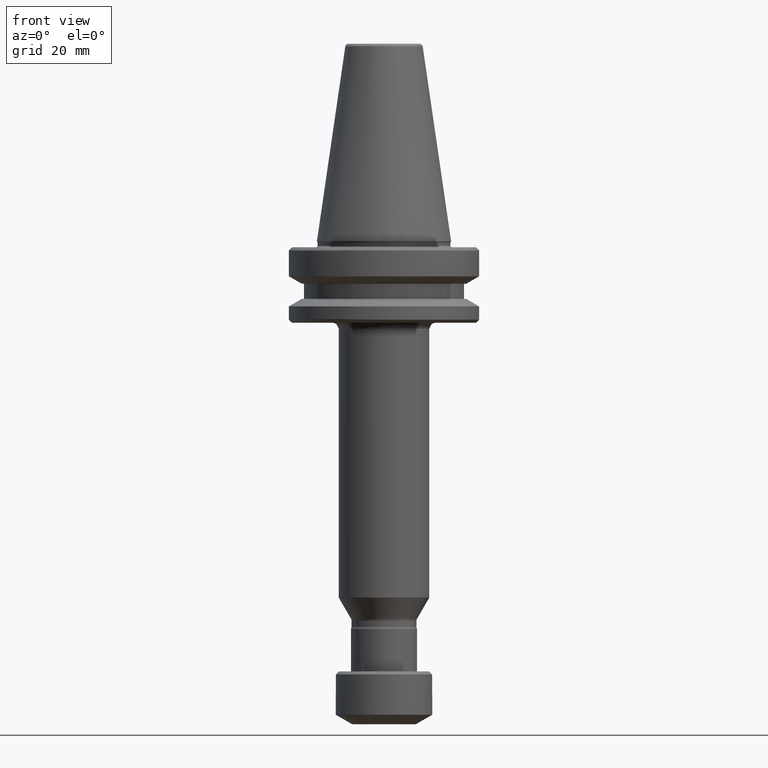
[diagram: clean part render]
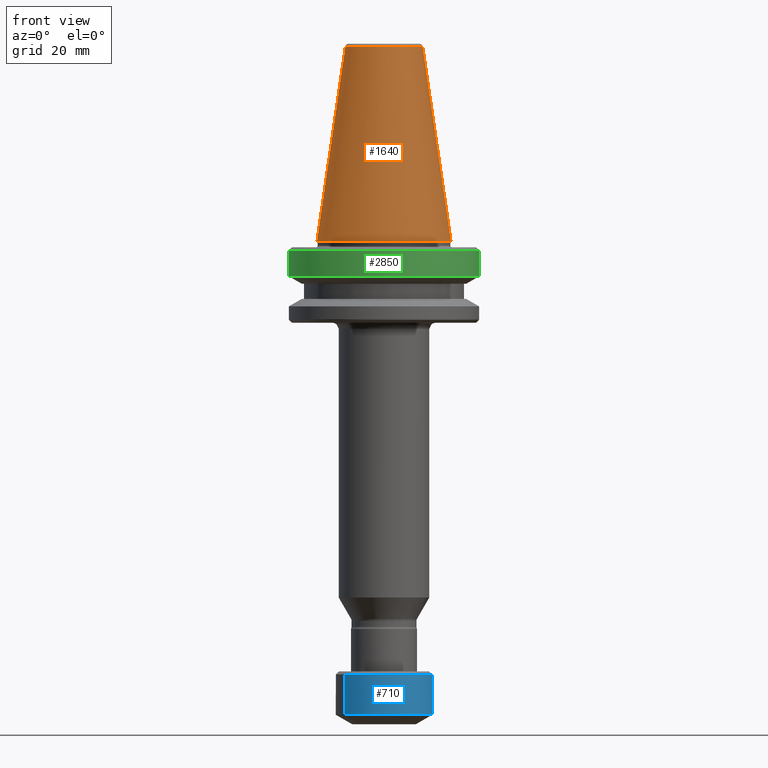
[diagram: same view with three faces highlighted in distinct colors, each labeled with its STEP entity id]
A machine part, front view with three faces highlighted in distinct colors.
Their STEP definitions:

[orange] entity #1640 — the highlighted conical surface has half-angle 8.297 deg.
#42 = VECTOR ( 'NONE', #2579, 1000.000000000000000 ) ;
#47 = LINE ( 'NONE', #1054, #42 ) ;
#488 = EDGE_CURVE ( 'NONE', #2176, #2423, #1147, .T. ) ;
#641 = DIRECTION ( 'NONE',  ( -0.0000000000000000000, -0.0000000000000000000, 1.000000000000000000 ) ) ;
#737 = CONICAL_SURFACE ( 'NONE', #3023, 12.81219950700000800, 0.1448138465489547400 ) ;
#750 = FACE_OUTER_BOUND ( 'NONE', #1932, .T. ) ;
#898 = VECTOR ( 'NONE', #2700, 1000.000000000000000 ) ;
#901 = LINE ( 'NONE', #3517, #898 ) ;
#916 = CARTESIAN_POINT ( 'NONE',  ( 119.3965867387900100, 130.0629772186810600, 223.7735449650539900 ) ) ;
#930 = CARTESIAN_POINT ( 'NONE',  ( 97.17158673879001200, 130.0629772186810600, 159.2292367380540000 ) ) ;
#965 = CIRCLE ( 'NONE', #2912, 22.22499999999999400 ) ;
#1054 = CARTESIAN_POINT ( 'NONE',  ( 106.5843872317899900, 130.0629772186810600, 223.7735449650539900 ) ) ;
#1081 = EDGE_CURVE ( 'NONE', #1292, #1549, #965, .T. ) ;
#1147 = CIRCLE ( 'NONE', #2162, 12.81219950700000800 ) ;
#1240 = EDGE_CURVE ( 'NONE', #2423, #1549, #901, .T. ) ;
#1263 = CARTESIAN_POINT ( 'NONE',  ( 132.2087862457899800, 130.0629772155276400, 223.7735449650539900 ) ) ;
#1274 = ORIENTED_EDGE ( 'NONE', *, *, #3599, .T. ) ;
#1292 = VERTEX_POINT ( 'NONE', #930 ) ;
#1430 = DIRECTION ( 'NONE',  ( 0.0000000000000000000, 0.0000000000000000000, -1.000000000000000000 ) ) ;
#1455 = CARTESIAN_POINT ( 'NONE',  ( 106.5843872317899900, 130.0629772182208500, 223.7735449650539900 ) ) ;
#1470 = CARTESIAN_POINT ( 'NONE',  ( 119.3965867387900100, 130.0629772186810600, 159.2292367380540000 ) ) ;
#1549 = VERTEX_POINT ( 'NONE', #3099 ) ;
#1640 = ADVANCED_FACE ( 'NONE', ( #750 ), #737, .T. ) ;
#1745 = DIRECTION ( 'NONE',  ( -1.000000000000000000, 0.0000000000000000000, 0.0000000000000000000 ) ) ;
#1798 = DIRECTION ( 'NONE',  ( 1.000000000000000000, 0.0000000000000000000, 0.0000000000000000000 ) ) ;
#1833 = ORIENTED_EDGE ( 'NONE', *, *, #488, .F. ) ;
#1932 = EDGE_LOOP ( 'NONE', ( #3718, #1833, #1274, #2790 ) ) ;
#2162 = AXIS2_PLACEMENT_3D ( 'NONE', #916, #641, #2741 ) ;
#2176 = VERTEX_POINT ( 'NONE', #1455 ) ;
#2423 = VERTEX_POINT ( 'NONE', #1263 ) ;
#2579 = DIRECTION ( 'NONE',  ( -0.1443082272688266400, 0.0000000000000000000, -0.9895327864919528600 ) ) ;
#2700 = DIRECTION ( 'NONE',  ( 0.1443082272688266400, 1.767266086153973400E-017, -0.9895327864919528600 ) ) ;
#2741 = DIRECTION ( 'NONE',  ( -1.000000000000000000, 0.0000000000000000000, 2.166339635943424100E-015 ) ) ;
#2790 = ORIENTED_EDGE ( 'NONE', *, *, #1081, .T. ) ;
#2905 = CARTESIAN_POINT ( 'NONE',  ( 119.3965867387900100, 130.0629772186810600, 223.7735449650539900 ) ) ;
#2912 = AXIS2_PLACEMENT_3D ( 'NONE', #1470, #3481, #1798 ) ;
#3023 = AXIS2_PLACEMENT_3D ( 'NONE', #2905, #1430, #1745 ) ;
#3099 = CARTESIAN_POINT ( 'NONE',  ( 141.6215867387900000, 130.0629772186810600, 159.2292367380540000 ) ) ;
#3481 = DIRECTION ( 'NONE',  ( 0.0000000000000000000, 0.0000000000000000000, 1.000000000000000000 ) ) ;
#3517 = CARTESIAN_POINT ( 'NONE',  ( 132.2087862457899800, 130.0629772186810600, 223.7735449650539900 ) ) ;
#3599 = EDGE_CURVE ( 'NONE', #2176, #1292, #47, .T. ) ;
#3718 = ORIENTED_EDGE ( 'NONE', *, *, #1240, .F. ) ;

[blue] entity #710 — the highlighted cylindrical surface (partial cylindrical patch) has radius 16 mm, axis along (0, 0, 1).
#116 = LINE ( 'NONE', #1612, #127 ) ;
#127 = VECTOR ( 'NONE', #3604, 1000.000000000000000 ) ;
#184 = CARTESIAN_POINT ( 'NONE',  ( 106.4691752599609600, 120.6352504270817300, 2.371451957568493400 ) ) ;
#206 = CARTESIAN_POINT ( 'NONE',  ( 119.3965867387900100, 130.0629772186810600, 2.404663219054282000 ) ) ;
#246 = CARTESIAN_POINT ( 'NONE',  ( 106.4691752599609600, 120.6352504270817300, 2.404663219054282500 ) ) ;
#291 = CIRCLE ( 'NONE', #3201, 16.00000000000000400 ) ;
#323 = CYLINDRICAL_SURFACE ( 'NONE', #360, 16.00000000000000400 ) ;
#360 = AXIS2_PLACEMENT_3D ( 'NONE', #206, #516, #3170 ) ;
#409 = CIRCLE ( 'NONE', #3483, 16.00000000000001400 ) ;
#464 = EDGE_CURVE ( 'NONE', #718, #2798, #1161, .T. ) ;
#516 = DIRECTION ( 'NONE',  ( 2.189988689056325900E-017, 1.597119042039337700E-017, 1.000000000000000000 ) ) ;
#603 = CARTESIAN_POINT ( 'NONE',  ( 119.3965867387900100, 130.0629772186810600, 2.371451957568493400 ) ) ;
#640 = CARTESIAN_POINT ( 'NONE',  ( 106.4691752599609600, 120.6352504270817300, 15.72923673805428100 ) ) ;
#710 = ADVANCED_FACE ( 'NONE', ( #1104 ), #323, .T. ) ;
#718 = VERTEX_POINT ( 'NONE', #184 ) ;
#876 = CARTESIAN_POINT ( 'NONE',  ( 119.3965867387900100, 130.0629772186810600, 15.72923673805428100 ) ) ;
#903 = DIRECTION ( 'NONE',  ( 1.000000000000000000, 0.0000000000000000000, 0.0000000000000000000 ) ) ;
#987 = EDGE_CURVE ( 'NONE', #1561, #3266, #991, .T. ) ;
#991 = CIRCLE ( 'NONE', #2923, 16.00000000000001400 ) ;
#994 = ORIENTED_EDGE ( 'NONE', *, *, #464, .F. ) ;
#1104 = FACE_OUTER_BOUND ( 'NONE', #3584, .T. ) ;
#1161 = LINE ( 'NONE', #246, #1176 ) ;
#1176 = VECTOR ( 'NONE', #2384, 1000.000000000000000 ) ;
#1181 = DIRECTION ( 'NONE',  ( -0.5892329244749569000, 0.8079632174268143200, 0.0000000000000000000 ) ) ;
#1232 = DIRECTION ( 'NONE',  ( -0.0000000000000000000, -0.0000000000000000000, 1.000000000000000000 ) ) ;
#1284 = ORIENTED_EDGE ( 'NONE', *, *, #2879, .F. ) ;
#1561 = VERTEX_POINT ( 'NONE', #3157 ) ;
#1612 = CARTESIAN_POINT ( 'NONE',  ( 132.3239982176190200, 139.4907040102803500, 2.404663219054281600 ) ) ;
#2006 = ORIENTED_EDGE ( 'NONE', *, *, #987, .T. ) ;
#2330 = ORIENTED_EDGE ( 'NONE', *, *, #2658, .T. ) ;
#2360 = VERTEX_POINT ( 'NONE', #3306 ) ;
#2384 = DIRECTION ( 'NONE',  ( 2.189988689056325900E-017, 1.597119042039337700E-017, 1.000000000000000000 ) ) ;
#2658 = EDGE_CURVE ( 'NONE', #718, #1561, #409, .T. ) ;
#2705 = DIRECTION ( 'NONE',  ( -0.0000000000000000000, -0.0000000000000000000, 1.000000000000000000 ) ) ;
#2798 = VERTEX_POINT ( 'NONE', #640 ) ;
#2879 = EDGE_CURVE ( 'NONE', #2798, #2360, #291, .T. ) ;
#2923 = AXIS2_PLACEMENT_3D ( 'NONE', #3009, #1232, #3280 ) ;
#2958 = CARTESIAN_POINT ( 'NONE',  ( 132.3239982176190200, 139.4907040102803500, 2.371451957568493400 ) ) ;
#2961 = DIRECTION ( 'NONE',  ( 0.0000000000000000000, 0.0000000000000000000, 1.000000000000000000 ) ) ;
#3009 = CARTESIAN_POINT ( 'NONE',  ( 119.3965867387900100, 130.0629772186810600, 2.371451957568493400 ) ) ;
#3157 = CARTESIAN_POINT ( 'NONE',  ( 135.3965867387900100, 130.0629772186810600, 2.371451957568493400 ) ) ;
#3170 = DIRECTION ( 'NONE',  ( -0.8079632174268143200, -0.5892329244749569000, 2.710505431213760500E-017 ) ) ;
#3201 = AXIS2_PLACEMENT_3D ( 'NONE', #876, #2961, #1181 ) ;
#3266 = VERTEX_POINT ( 'NONE', #2958 ) ;
#3280 = DIRECTION ( 'NONE',  ( 1.000000000000000000, 0.0000000000000000000, 0.0000000000000000000 ) ) ;
#3306 = CARTESIAN_POINT ( 'NONE',  ( 132.3239982176190200, 139.4907040102803500, 15.72923673805428100 ) ) ;
#3354 = EDGE_CURVE ( 'NONE', #3266, #2360, #116, .T. ) ;
#3442 = ORIENTED_EDGE ( 'NONE', *, *, #3354, .T. ) ;
#3483 = AXIS2_PLACEMENT_3D ( 'NONE', #603, #2705, #903 ) ;
#3584 = EDGE_LOOP ( 'NONE', ( #2330, #2006, #3442, #1284, #994 ) ) ;
#3604 = DIRECTION ( 'NONE',  ( 2.189988689056325900E-017, 1.597119042039337700E-017, 1.000000000000000000 ) ) ;

[green] entity #2850 — the highlighted cylindrical surface (partial cylindrical patch) has radius 31.5 mm, axis along (0, 0, 1).
#59 = CIRCLE ( 'NONE', #3136, 31.50000000000000000 ) ;
#178 = CARTESIAN_POINT ( 'NONE',  ( 119.3965867387900100, 130.0629772186810600, 156.0635513130540100 ) ) ;
#216 = CARTESIAN_POINT ( 'NONE',  ( 87.89658673826343700, 130.0629772186810600, 147.6016487017199400 ) ) ;
#263 = CIRCLE ( 'NONE', #2613, 31.50000000027558400 ) ;
#314 = CYLINDRICAL_SURFACE ( 'NONE', #3158, 31.50000000000000000 ) ;
#318 = FACE_OUTER_BOUND ( 'NONE', #1328, .T. ) ;
#548 = CARTESIAN_POINT ( 'NONE',  ( 150.8965867393165800, 130.0629772186810600, 147.6016487017199400 ) ) ;
#582 = CIRCLE ( 'NONE', #3744, 31.50000000052655100 ) ;
#664 = CIRCLE ( 'NONE', #3175, 31.50000000000000000 ) ;
#698 = EDGE_CURVE ( 'NONE', #2213, #2883, #1138, .T. ) ;
#842 = DIRECTION ( 'NONE',  ( -0.0000000000000000000, -0.0000000000000000000, 1.000000000000000000 ) ) ;
#889 = VECTOR ( 'NONE', #2717, 1000.000000000000000 ) ;
#974 = LINE ( 'NONE', #3525, #889 ) ;
#1116 = VECTOR ( 'NONE', #1812, 1000.000000000000000 ) ;
#1138 = LINE ( 'NONE', #2898, #1116 ) ;
#1282 = EDGE_CURVE ( 'NONE', #1671, #2145, #974, .T. ) ;
#1328 = EDGE_LOOP ( 'NONE', ( #2413, #1810, #1660, #3105, #1969, #1386 ) ) ;
#1386 = ORIENTED_EDGE ( 'NONE', *, *, #1914, .F. ) ;
#1420 = VERTEX_POINT ( 'NONE', #3355 ) ;
#1660 = ORIENTED_EDGE ( 'NONE', *, *, #698, .T. ) ;
#1665 = CARTESIAN_POINT ( 'NONE',  ( 128.1140401120438200, 99.79325626353336500, 156.0635513136600400 ) ) ;
#1671 = VERTEX_POINT ( 'NONE', #216 ) ;
#1678 = CARTESIAN_POINT ( 'NONE',  ( 119.3965867387900100, 130.0629772186810600, 156.0635513130540100 ) ) ;
#1772 = DIRECTION ( 'NONE',  ( -0.0000000000000000000, -0.0000000000000000000, 1.000000000000000000 ) ) ;
#1810 = ORIENTED_EDGE ( 'NONE', *, *, #2110, .T. ) ;
#1812 = DIRECTION ( 'NONE',  ( 0.0000000000000000000, 0.0000000000000000000, 1.000000000000000000 ) ) ;
#1914 = EDGE_CURVE ( 'NONE', #2145, #1420, #664, .T. ) ;
#1969 = ORIENTED_EDGE ( 'NONE', *, *, #3061, .F. ) ;
#2001 = DIRECTION ( 'NONE',  ( 0.0000000000000000000, -1.000000000000000000, 0.0000000000000000000 ) ) ;
#2110 = EDGE_CURVE ( 'NONE', #1671, #2213, #582, .T. ) ;
#2145 = VERTEX_POINT ( 'NONE', #3196 ) ;
#2213 = VERTEX_POINT ( 'NONE', #548 ) ;
#2381 = DIRECTION ( 'NONE',  ( 0.0000000000000000000, 0.0000000000000000000, 1.000000000000000000 ) ) ;
#2413 = ORIENTED_EDGE ( 'NONE', *, *, #1282, .F. ) ;
#2545 = DIRECTION ( 'NONE',  ( 0.0000000000000000000, -1.000000000000000000, 0.0000000000000000000 ) ) ;
#2613 = AXIS2_PLACEMENT_3D ( 'NONE', #3460, #1772, #3725 ) ;
#2649 = CARTESIAN_POINT ( 'NONE',  ( 119.3965867387900100, 130.0629772186810600, 147.6016487017199400 ) ) ;
#2657 = DIRECTION ( 'NONE',  ( 1.000000000000000000, 0.0000000000000000000, 0.0000000000000000000 ) ) ;
#2717 = DIRECTION ( 'NONE',  ( 0.0000000000000000000, 0.0000000000000000000, 1.000000000000000000 ) ) ;
#2850 = ADVANCED_FACE ( 'NONE', ( #318 ), #314, .T. ) ;
#2883 = VERTEX_POINT ( 'NONE', #3236 ) ;
#2898 = CARTESIAN_POINT ( 'NONE',  ( 150.8965867387900100, 130.0629772186810600, 147.6293787430540200 ) ) ;
#2931 = DIRECTION ( 'NONE',  ( 1.000000000000000000, 0.0000000000000000000, 0.0000000000000000000 ) ) ;
#3061 = EDGE_CURVE ( 'NONE', #1420, #3593, #263, .T. ) ;
#3105 = ORIENTED_EDGE ( 'NONE', *, *, #3596, .F. ) ;
#3136 = AXIS2_PLACEMENT_3D ( 'NONE', #1678, #3658, #2001 ) ;
#3158 = AXIS2_PLACEMENT_3D ( 'NONE', #3728, #2381, #2657 ) ;
#3175 = AXIS2_PLACEMENT_3D ( 'NONE', #178, #3677, #2545 ) ;
#3196 = CARTESIAN_POINT ( 'NONE',  ( 87.89658673879000600, 130.0629772186810600, 156.0635513130540100 ) ) ;
#3236 = CARTESIAN_POINT ( 'NONE',  ( 150.8965867387900100, 130.0629772219114400, 156.0635513130361300 ) ) ;
#3355 = CARTESIAN_POINT ( 'NONE',  ( 110.7971495822782900, 99.75951734016935300, 156.0635513136600400 ) ) ;
#3460 = CARTESIAN_POINT ( 'NONE',  ( 119.3965867387900100, 130.0629772186810600, 156.0635513136600400 ) ) ;
#3525 = CARTESIAN_POINT ( 'NONE',  ( 87.89658673879000600, 130.0629772186810600, 147.6293787430540200 ) ) ;
#3593 = VERTEX_POINT ( 'NONE', #1665 ) ;
#3596 = EDGE_CURVE ( 'NONE', #3593, #2883, #59, .T. ) ;
#3658 = DIRECTION ( 'NONE',  ( 0.0000000000000000000, 0.0000000000000000000, 1.000000000000000000 ) ) ;
#3677 = DIRECTION ( 'NONE',  ( 0.0000000000000000000, 0.0000000000000000000, 1.000000000000000000 ) ) ;
#3725 = DIRECTION ( 'NONE',  ( 1.000000000000000000, 0.0000000000000000000, 0.0000000000000000000 ) ) ;
#3728 = CARTESIAN_POINT ( 'NONE',  ( 119.3965867387900100, 130.0629772186810600, 147.6293787430540200 ) ) ;
#3744 = AXIS2_PLACEMENT_3D ( 'NONE', #2649, #842, #2931 ) ;